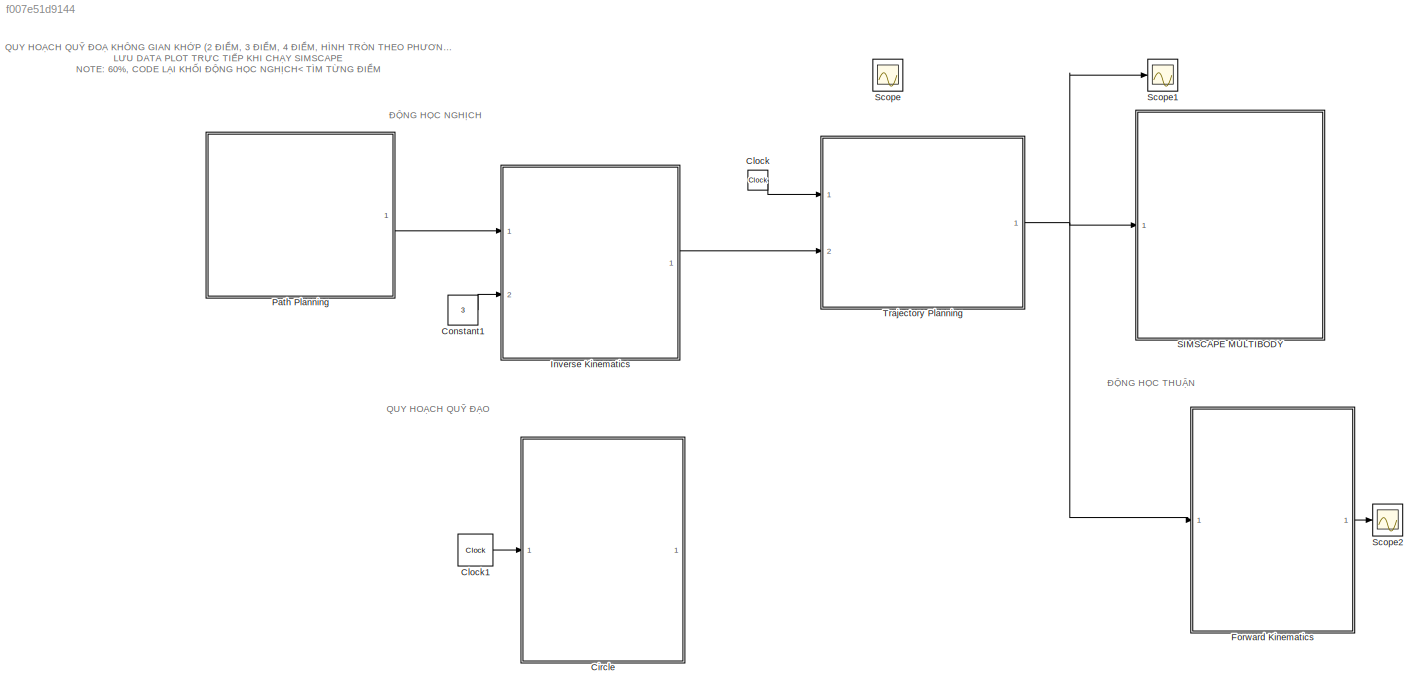
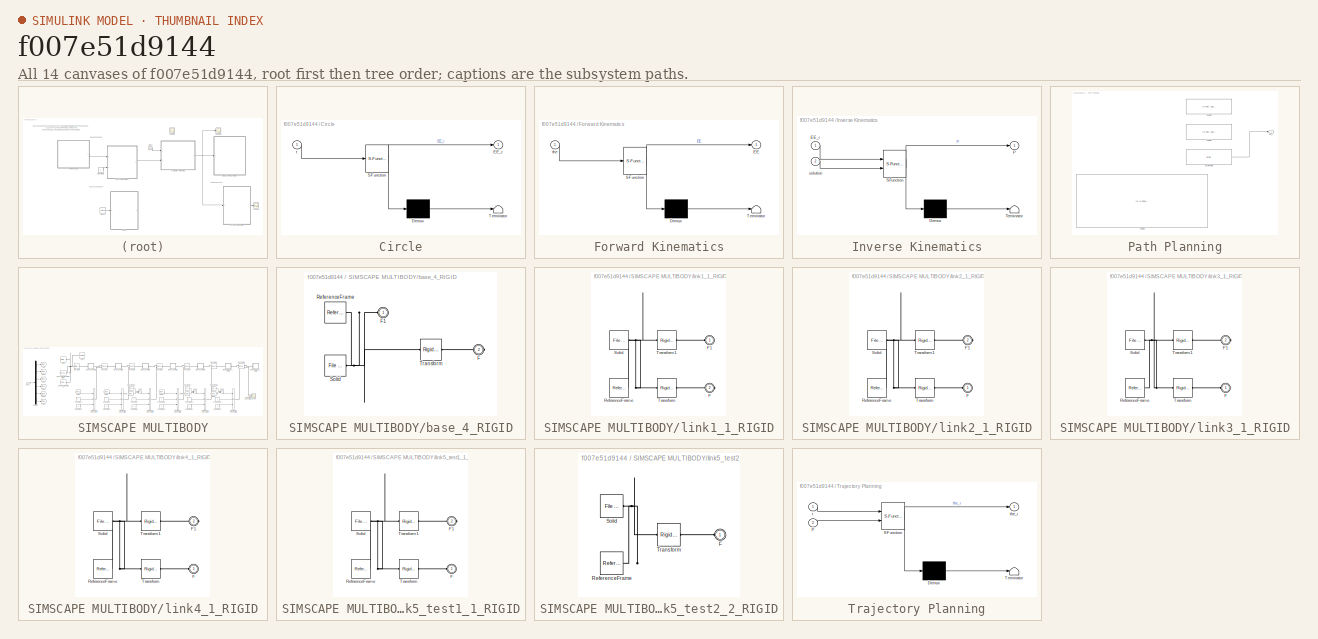
[diagram: thumbnail index - all 14 canvases of the model, root first then tree order]
MODEL slx_f007e51d9144
KIND model
CONFIG AbsTol = auto
CONFIG EnableMultiTasking = off
CONFIG FixedStep = 0.01
CONFIG MaxStep = auto
CONFIG MinStep = auto
CONFIG RelTol = 1e-3
CONFIG SampleTimeConstraint = Unconstrained
CONFIG SolverName = FixedStepAuto
CONFIG StartTime = 0.0
CONFIG StopTime = 10
WORKSPACE source: external: MATLAB File  (data not in archive)
BLOCK [SubSystem] Circle
  Commented = on
  ErrorFcn = Stateflow.Translate.translate
  PermitHierarchicalResolution = ExplicitOnly
  Ports = [1, 1]
  RequestExecContextInheritance = off
  SFBlockType = MATLAB Function
  TreatAsAtomicUnit = on
BLOCK [Demux] Circle/ Demux 
  Outputs = 1
  Ports = [1, 1]
BLOCK [S-Function] Circle/ SFunction 
  EnableBusSupport = on
  FunctionName = sf_sfun
  PortCounts = [1 2]
  Ports = [1, 2]
  SFcnIsStateOwnerBlock = off
  SFunctionDeploymentMode = off
  Tag = Stateflow S-Function 4
BLOCK [Terminator] Circle/ Terminator 
BLOCK [Outport] Circle/EE_r
BLOCK [Inport] Circle/t
BLOCK [Clock] Clock
BLOCK [Clock] Clock1
  Commented = on
  DisplayTime = on
BLOCK [Constant] Constant1
  Value = 3
BLOCK [SubSystem] Forward Kinematics
  ErrorFcn = Stateflow.Translate.translate
  PermitHierarchicalResolution = ExplicitOnly
  Ports = [1, 1]
  RequestExecContextInheritance = off
  SFBlockType = MATLAB Function
  TreatAsAtomicUnit = on
BLOCK [Demux] Forward Kinematics/ Demux 
  Outputs = 1
  Ports = [1, 1]
BLOCK [S-Function] Forward Kinematics/ SFunction 
  EnableBusSupport = on
  FunctionName = sf_sfun
  PortCounts = [1 2]
  Ports = [1, 2]
  SFcnIsStateOwnerBlock = off
  SFunctionDeploymentMode = off
  Tag = Stateflow S-Function 1
BLOCK [Terminator] Forward Kinematics/ Terminator 
BLOCK [Outport] Forward Kinematics/EE
BLOCK [Inport] Forward Kinematics/the
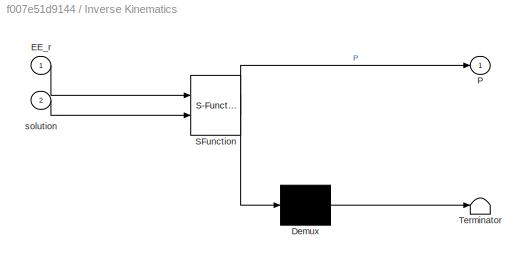
BLOCK [SubSystem] Inverse Kinematics
  ErrorFcn = Stateflow.Translate.translate
  PermitHierarchicalResolution = ExplicitOnly
  Ports = [2, 1]
  RequestExecContextInheritance = off
  SFBlockType = MATLAB Function
  TreatAsAtomicUnit = on
BLOCK [Demux] Inverse Kinematics/ Demux 
  Outputs = 1
  Ports = [1, 1]
BLOCK [S-Function] Inverse Kinematics/ SFunction 
  EnableBusSupport = on
  FunctionName = sf_sfun
  PortCounts = [2 2]
  Ports = [2, 2]
  SFcnIsStateOwnerBlock = off
  SFunctionDeploymentMode = off
  Tag = Stateflow S-Function 6
BLOCK [Terminator] Inverse Kinematics/ Terminator 
BLOCK [Inport] Inverse Kinematics/EE_r
BLOCK [Outport] Inverse Kinematics/P
BLOCK [Inport] Inverse Kinematics/solution
  Port = 2
BLOCK [SubSystem] Path Planning
  Ports = [0, 1]
  RequestExecContextInheritance = off
BLOCK [Constant] Path Planning/2 Points
  Commented = on
  Value = [0 450 -100 650 0 0 0; 10 450 100 650 0 0 0;20 450 -100 650 0 0 0]
BLOCK [Constant] Path Planning/3 Points
  Commented = on
  Value = [0 450 -100 650 0 0 0; 10 450 100 650 0 0 0; 20 450 0 500 0 0 0; 30 450 -100 650 0 0 0]
BLOCK [Constant] Path Planning/4 Points
  Commented = on
  Value = [0,-0.2640,0.0117,0.1379,2.0748,0.3026,1.0469,0,0,0,0,0,0;5,0.2640,0.0117,0.1379,-2.0748,0.3026,-1.0469,0,0,0,0,0,0;10,0.2640,0.0669,0.5745,-2.7173,0.6865,-0.3361,0,0,0,0,0,0;15,-0.2640, 0.0669,0.5745,2.7173,0.6865,0.3361,0,0,0,0,0,0;20,-0.2640,0.0117,0.1379,2.0748,0.3026,1.0469,0,0,0,0,0,0]
BLOCK [Constant] Path Planning/Circle Points
  Value = circle
BLOCK [Outport] Path Planning/EE_r
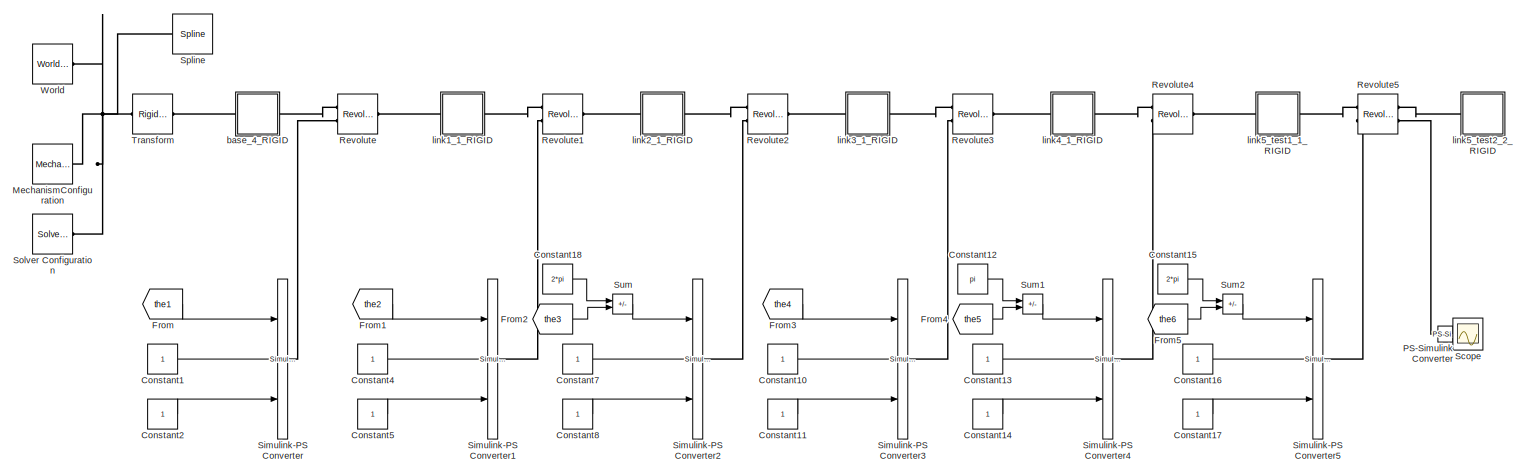
[diagram: SIMSCAPE MULTIBODY - part 1/2, most of the canvas]
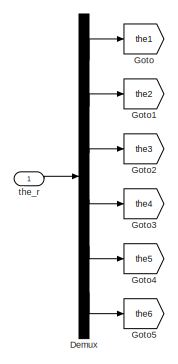
[diagram: SIMSCAPE MULTIBODY - part 2/2, middle left region]
BLOCK [SubSystem] SIMSCAPE MULTIBODY
  Ports = [1]
  RequestExecContextInheritance = off
BLOCK [Constant] SIMSCAPE MULTIBODY/Constant1
BLOCK [Constant] SIMSCAPE MULTIBODY/Constant10
BLOCK [Constant] SIMSCAPE MULTIBODY/Constant11
BLOCK [Constant] SIMSCAPE MULTIBODY/Constant12
  Value = pi
BLOCK [Constant] SIMSCAPE MULTIBODY/Constant13
BLOCK [Constant] SIMSCAPE MULTIBODY/Constant14
BLOCK [Constant] SIMSCAPE MULTIBODY/Constant15
  Value = 2*pi
BLOCK [Constant] SIMSCAPE MULTIBODY/Constant16
BLOCK [Constant] SIMSCAPE MULTIBODY/Constant17
BLOCK [Constant] SIMSCAPE MULTIBODY/Constant18
  Value = 2*pi
BLOCK [Constant] SIMSCAPE MULTIBODY/Constant2
BLOCK [Constant] SIMSCAPE MULTIBODY/Constant4
BLOCK [Constant] SIMSCAPE MULTIBODY/Constant5
BLOCK [Constant] SIMSCAPE MULTIBODY/Constant7
BLOCK [Constant] SIMSCAPE MULTIBODY/Constant8
BLOCK [Demux] SIMSCAPE MULTIBODY/Demux
  Outputs = 6
  Ports = [1, 6]
BLOCK [From] SIMSCAPE MULTIBODY/From
  GotoTag = the1
BLOCK [From] SIMSCAPE MULTIBODY/From1
  GotoTag = the2
BLOCK [From] SIMSCAPE MULTIBODY/From2
  GotoTag = the3
BLOCK [From] SIMSCAPE MULTIBODY/From3
  GotoTag = the4
BLOCK [From] SIMSCAPE MULTIBODY/From4
  GotoTag = the5
BLOCK [From] SIMSCAPE MULTIBODY/From5
  GotoTag = the6
BLOCK [Goto] SIMSCAPE MULTIBODY/Goto
  GotoTag = the1
BLOCK [Goto] SIMSCAPE MULTIBODY/Goto1
  GotoTag = the2
BLOCK [Goto] SIMSCAPE MULTIBODY/Goto2
  GotoTag = the3
BLOCK [Goto] SIMSCAPE MULTIBODY/Goto3
  GotoTag = the4
BLOCK [Goto] SIMSCAPE MULTIBODY/Goto4
  GotoTag = the5
BLOCK [Goto] SIMSCAPE MULTIBODY/Goto5
  GotoTag = the6
BLOCK [Reference] SIMSCAPE MULTIBODY/MechanismConfiguration  REF=sm_lib/Utilities/Mechanism
Configuration
  Ports = [0, 0, 0, 0, 0, 0, 1]
  SourceBlock = sm_lib/Utilities/Mechanism\nConfiguration
  SourceProductBaseCode = MS
  SourceType = Mechanism\nConfiguration
BLOCK [Reference] SIMSCAPE MULTIBODY/PS-Simulink Converter  REF=nesl_utility/PS-Simulink
Converter
  Ports = [0, 1, 0, 0, 0, 1]
  SourceBlock = nesl_utility/PS-Simulink\nConverter
  SourceProductBaseCode = PW,SS
  SourceType = PS-Simulink\nConverter
BLOCK [Reference] SIMSCAPE MULTIBODY/Revolute  REF=sm_lib/Joints/Revolute Joint
  Ports = [0, 0, 0, 0, 0, 2, 1]
  SourceBlock = sm_lib/Joints/Revolute Joint
  SourceProductBaseCode = MS
  SourceType = Revolute Joint
BLOCK [Reference] SIMSCAPE MULTIBODY/Revolute1  REF=sm_lib/Joints/Revolute Joint
  Ports = [0, 0, 0, 0, 0, 2, 1]
  SourceBlock = sm_lib/Joints/Revolute Joint
  SourceProductBaseCode = MS
  SourceType = Revolute Joint
BLOCK [Reference] SIMSCAPE MULTIBODY/Revolute2  REF=sm_lib/Joints/Revolute Joint
  Ports = [0, 0, 0, 0, 0, 2, 1]
  SourceBlock = sm_lib/Joints/Revolute Joint
  SourceProductBaseCode = MS
  SourceType = Revolute Joint
BLOCK [Reference] SIMSCAPE MULTIBODY/Revolute3  REF=sm_lib/Joints/Revolute Joint
  Ports = [0, 0, 0, 0, 0, 2, 1]
  SourceBlock = sm_lib/Joints/Revolute Joint
  SourceProductBaseCode = MS
  SourceType = Revolute Joint
BLOCK [Reference] SIMSCAPE MULTIBODY/Revolute4  REF=sm_lib/Joints/Revolute Joint
  Ports = [0, 0, 0, 0, 0, 2, 1]
  SourceBlock = sm_lib/Joints/Revolute Joint
  SourceProductBaseCode = MS
  SourceType = Revolute Joint
BLOCK [Reference] SIMSCAPE MULTIBODY/Revolute5  REF=sm_lib/Joints/Revolute Joint
  Ports = [0, 0, 0, 0, 0, 2, 2]
  SourceBlock = sm_lib/Joints/Revolute Joint
  SourceProductBaseCode = MS
  SourceType = Revolute Joint
BLOCK [Scope] SIMSCAPE MULTIBODY/Scope
  Floating = off
  NumInputPorts = 1
  Ports = [1]
  ScopeSpecificationString = Simulink.scopes.TimeScopeBlockCfg('CurrentConfiguration', extmgr.ConfigurationSet(extmgr.Configuration('Core','General UI',true),extmgr.Configuration('Core','Source UI',true),extmgr.Configuration('Sources','WiredSimulink',true,'DataLoggingVariableName','ScopeData3'),extmgr.Configuration('Visuals','Time Domain',true,'SerializedDisplays',{struct('MinYLimReal','4.97456','MaxYLimReal','7.59181','YLabe...<+1378ch>
BLOCK [Reference] SIMSCAPE MULTIBODY/Simulink-PS Converter  REF=nesl_utility/Simulink-PS
Converter
  Ports = [3, 0, 0, 0, 0, 0, 1]
  SourceBlock = nesl_utility/Simulink-PS\nConverter
  SourceProductBaseCode = PW,SS
  SourceType = Simulink-PS\nConverter
BLOCK [Reference] SIMSCAPE MULTIBODY/Simulink-PS Converter1  REF=nesl_utility/Simulink-PS
Converter
  Ports = [3, 0, 0, 0, 0, 0, 1]
  SourceBlock = nesl_utility/Simulink-PS\nConverter
  SourceProductBaseCode = PW,SS
  SourceType = Simulink-PS\nConverter
BLOCK [Reference] SIMSCAPE MULTIBODY/Simulink-PS Converter2  REF=nesl_utility/Simulink-PS
Converter
  Ports = [3, 0, 0, 0, 0, 0, 1]
  SourceBlock = nesl_utility/Simulink-PS\nConverter
  SourceProductBaseCode = PW,SS
  SourceType = Simulink-PS\nConverter
BLOCK [Reference] SIMSCAPE MULTIBODY/Simulink-PS Converter3  REF=nesl_utility/Simulink-PS
Converter
  Ports = [3, 0, 0, 0, 0, 0, 1]
  SourceBlock = nesl_utility/Simulink-PS\nConverter
  SourceProductBaseCode = PW,SS
  SourceType = Simulink-PS\nConverter
BLOCK [Reference] SIMSCAPE MULTIBODY/Simulink-PS Converter4  REF=nesl_utility/Simulink-PS
Converter
  Ports = [3, 0, 0, 0, 0, 0, 1]
  SourceBlock = nesl_utility/Simulink-PS\nConverter
  SourceProductBaseCode = PW,SS
  SourceType = Simulink-PS\nConverter
BLOCK [Reference] SIMSCAPE MULTIBODY/Simulink-PS Converter5  REF=nesl_utility/Simulink-PS
Converter
  Ports = [3, 0, 0, 0, 0, 0, 1]
  SourceBlock = nesl_utility/Simulink-PS\nConverter
  SourceProductBaseCode = PW,SS
  SourceType = Simulink-PS\nConverter
BLOCK [Reference] SIMSCAPE MULTIBODY/Solver Configuration  REF=nesl_utility/Solver
Configuration
  Ports = [0, 0, 0, 0, 0, 0, 1]
  SourceBlock = nesl_utility/Solver\nConfiguration
  SourceProductBaseCode = PW,SS
  SourceType = Solver\nConfiguration
BLOCK [Reference] SIMSCAPE MULTIBODY/Spline  REF=sm_lib/Curves and Surfaces/Spline
  Ports = [0, 0, 0, 0, 0, 1, 1]
  SourceBlock = sm_lib/Curves and Surfaces/Spline
  SourceProductBaseCode = MS
  SourceType = Spline
BLOCK [Sum] SIMSCAPE MULTIBODY/Sum
  IconShape = rectangular
  Inputs = +-
  Ports = [2, 1]
BLOCK [Sum] SIMSCAPE MULTIBODY/Sum1
  IconShape = rectangular
  Inputs = +-
  Ports = [2, 1]
BLOCK [Sum] SIMSCAPE MULTIBODY/Sum2
  IconShape = rectangular
  Inputs = +-
  Ports = [2, 1]
BLOCK [Reference] SIMSCAPE MULTIBODY/Transform  REF=sm_lib/Frames and
Transforms/Rigid
Transform
  Ports = [0, 0, 0, 0, 0, 1, 1]
  SourceBlock = sm_lib/Frames and\nTransforms/Rigid\nTransform
  SourceProductBaseCode = MS
  SourceType = Rigid\nTransform
BLOCK [Reference] SIMSCAPE MULTIBODY/World  REF=sm_lib/Frames and
Transforms/World Frame
  Ports = [0, 0, 0, 0, 0, 0, 1]
  SourceBlock = sm_lib/Frames and\nTransforms/World Frame
  SourceProductBaseCode = MS
  SourceType = World Frame
BLOCK [SubSystem] SIMSCAPE MULTIBODY/base_4_RIGID
  Ports = [0, 0, 0, 0, 0, 1, 1]
  RequestExecContextInheritance = off
BLOCK [PMIOPort] SIMSCAPE MULTIBODY/base_4_RIGID/F
  Port = 2
  Side = Right
BLOCK [PMIOPort] SIMSCAPE MULTIBODY/base_4_RIGID/F1
  Side = Left
BLOCK [Reference] SIMSCAPE MULTIBODY/base_4_RIGID/ReferenceFrame  REF=sm_lib/Frames and
Transforms/Reference
Frame
  Ports = [0, 0, 0, 0, 0, 0, 1]
  SourceBlock = sm_lib/Frames and\nTransforms/Reference\nFrame
  SourceProductBaseCode = MS
  SourceType = Reference\nFrame
BLOCK [Reference] SIMSCAPE MULTIBODY/base_4_RIGID/Solid  REF=sm_lib/Body Elements/File Solid
  Ports = [0, 0, 0, 0, 0, 0, 1]
  SourceBlock = sm_lib/Body Elements/File Solid
  SourceProductBaseCode = MS
  SourceType = File Solid
BLOCK [Reference] SIMSCAPE MULTIBODY/base_4_RIGID/Transform  REF=sm_lib/Frames and
Transforms/Rigid
Transform
  Ports = [0, 0, 0, 0, 0, 1, 1]
  SourceBlock = sm_lib/Frames and\nTransforms/Rigid\nTransform
  SourceProductBaseCode = MS
  SourceType = Rigid\nTransform
BLOCK [SubSystem] SIMSCAPE MULTIBODY/link1_1_RIGID
  Ports = [0, 0, 0, 0, 0, 1, 1]
  RequestExecContextInheritance = off
BLOCK [PMIOPort] SIMSCAPE MULTIBODY/link1_1_RIGID/F
  Port = 2
  Side = Right
BLOCK [PMIOPort] SIMSCAPE MULTIBODY/link1_1_RIGID/F1
  Side = Left
BLOCK [Reference] SIMSCAPE MULTIBODY/link1_1_RIGID/ReferenceFrame  REF=sm_lib/Frames and
Transforms/Reference
Frame
  Ports = [0, 0, 0, 0, 0, 0, 1]
  SourceBlock = sm_lib/Frames and\nTransforms/Reference\nFrame
  SourceProductBaseCode = MS
  SourceType = Reference\nFrame
BLOCK [Reference] SIMSCAPE MULTIBODY/link1_1_RIGID/Solid  REF=sm_lib/Body Elements/File Solid
  Ports = [0, 0, 0, 0, 0, 0, 1]
  SourceBlock = sm_lib/Body Elements/File Solid
  SourceProductBaseCode = MS
  SourceType = File Solid
BLOCK [Reference] SIMSCAPE MULTIBODY/link1_1_RIGID/Transform  REF=sm_lib/Frames and
Transforms/Rigid
Transform
  Ports = [0, 0, 0, 0, 0, 1, 1]
  SourceBlock = sm_lib/Frames and\nTransforms/Rigid\nTransform
  SourceProductBaseCode = MS
  SourceType = Rigid\nTransform
BLOCK [Reference] SIMSCAPE MULTIBODY/link1_1_RIGID/Transform1  REF=sm_lib/Frames and
Transforms/Rigid
Transform
  Ports = [0, 0, 0, 0, 0, 1, 1]
  SourceBlock = sm_lib/Frames and\nTransforms/Rigid\nTransform
  SourceProductBaseCode = MS
  SourceType = Rigid\nTransform
BLOCK [SubSystem] SIMSCAPE MULTIBODY/link2_1_RIGID
  Ports = [0, 0, 0, 0, 0, 1, 1]
  RequestExecContextInheritance = off
BLOCK [PMIOPort] SIMSCAPE MULTIBODY/link2_1_RIGID/F
  Side = Left
BLOCK [PMIOPort] SIMSCAPE MULTIBODY/link2_1_RIGID/F1
  Port = 2
  Side = Right
BLOCK [Reference] SIMSCAPE MULTIBODY/link2_1_RIGID/ReferenceFrame  REF=sm_lib/Frames and
Transforms/Reference
Frame
  Ports = [0, 0, 0, 0, 0, 0, 1]
  SourceBlock = sm_lib/Frames and\nTransforms/Reference\nFrame
  SourceProductBaseCode = MS
  SourceType = Reference\nFrame
BLOCK [Reference] SIMSCAPE MULTIBODY/link2_1_RIGID/Solid  REF=sm_lib/Body Elements/File Solid
  Ports = [0, 0, 0, 0, 0, 0, 1]
  SourceBlock = sm_lib/Body Elements/File Solid
  SourceProductBaseCode = MS
  SourceType = File Solid
BLOCK [Reference] SIMSCAPE MULTIBODY/link2_1_RIGID/Transform  REF=sm_lib/Frames and
Transforms/Rigid
Transform
  Ports = [0, 0, 0, 0, 0, 1, 1]
  SourceBlock = sm_lib/Frames and\nTransforms/Rigid\nTransform
  SourceProductBaseCode = MS
  SourceType = Rigid\nTransform
BLOCK [Reference] SIMSCAPE MULTIBODY/link2_1_RIGID/Transform1  REF=sm_lib/Frames and
Transforms/Rigid
Transform
  Ports = [0, 0, 0, 0, 0, 1, 1]
  SourceBlock = sm_lib/Frames and\nTransforms/Rigid\nTransform
  SourceProductBaseCode = MS
  SourceType = Rigid\nTransform
BLOCK [SubSystem] SIMSCAPE MULTIBODY/link3_1_RIGID
  Ports = [0, 0, 0, 0, 0, 1, 1]
  RequestExecContextInheritance = off
BLOCK [PMIOPort] SIMSCAPE MULTIBODY/link3_1_RIGID/F
  Side = Left
BLOCK [PMIOPort] SIMSCAPE MULTIBODY/link3_1_RIGID/F1
  Port = 2
  Side = Right
BLOCK [Reference] SIMSCAPE MULTIBODY/link3_1_RIGID/ReferenceFrame  REF=sm_lib/Frames and
Transforms/Reference
Frame
  Ports = [0, 0, 0, 0, 0, 0, 1]
  SourceBlock = sm_lib/Frames and\nTransforms/Reference\nFrame
  SourceProductBaseCode = MS
  SourceType = Reference\nFrame
BLOCK [Reference] SIMSCAPE MULTIBODY/link3_1_RIGID/Solid  REF=sm_lib/Body Elements/File Solid
  Ports = [0, 0, 0, 0, 0, 0, 1]
  SourceBlock = sm_lib/Body Elements/File Solid
  SourceProductBaseCode = MS
  SourceType = File Solid
BLOCK [Reference] SIMSCAPE MULTIBODY/link3_1_RIGID/Transform  REF=sm_lib/Frames and
Transforms/Rigid
Transform
  Ports = [0, 0, 0, 0, 0, 1, 1]
  SourceBlock = sm_lib/Frames and\nTransforms/Rigid\nTransform
  SourceProductBaseCode = MS
  SourceType = Rigid\nTransform
BLOCK [Reference] SIMSCAPE MULTIBODY/link3_1_RIGID/Transform1  REF=sm_lib/Frames and
Transforms/Rigid
Transform
  Ports = [0, 0, 0, 0, 0, 1, 1]
  SourceBlock = sm_lib/Frames and\nTransforms/Rigid\nTransform
  SourceProductBaseCode = MS
  SourceType = Rigid\nTransform
BLOCK [SubSystem] SIMSCAPE MULTIBODY/link4_1_RIGID
  Ports = [0, 0, 0, 0, 0, 1, 1]
  RequestExecContextInheritance = off
BLOCK [PMIOPort] SIMSCAPE MULTIBODY/link4_1_RIGID/F
  Side = Left
BLOCK [PMIOPort] SIMSCAPE MULTIBODY/link4_1_RIGID/F1
  Port = 2
  Side = Right
BLOCK [Reference] SIMSCAPE MULTIBODY/link4_1_RIGID/ReferenceFrame  REF=sm_lib/Frames and
Transforms/Reference
Frame
  Ports = [0, 0, 0, 0, 0, 0, 1]
  SourceBlock = sm_lib/Frames and\nTransforms/Reference\nFrame
  SourceProductBaseCode = MS
  SourceType = Reference\nFrame
BLOCK [Reference] SIMSCAPE MULTIBODY/link4_1_RIGID/Solid  REF=sm_lib/Body Elements/File Solid
  Ports = [0, 0, 0, 0, 0, 0, 1]
  SourceBlock = sm_lib/Body Elements/File Solid
  SourceProductBaseCode = MS
  SourceType = File Solid
BLOCK [Reference] SIMSCAPE MULTIBODY/link4_1_RIGID/Transform  REF=sm_lib/Frames and
Transforms/Rigid
Transform
  Ports = [0, 0, 0, 0, 0, 1, 1]
  SourceBlock = sm_lib/Frames and\nTransforms/Rigid\nTransform
  SourceProductBaseCode = MS
  SourceType = Rigid\nTransform
BLOCK [Reference] SIMSCAPE MULTIBODY/link4_1_RIGID/Transform1  REF=sm_lib/Frames and
Transforms/Rigid
Transform
  Ports = [0, 0, 0, 0, 0, 1, 1]
  SourceBlock = sm_lib/Frames and\nTransforms/Rigid\nTransform
  SourceProductBaseCode = MS
  SourceType = Rigid\nTransform
BLOCK [SubSystem] SIMSCAPE MULTIBODY/link5_test1_1_RIGID
  Ports = [0, 0, 0, 0, 0, 1, 1]
  RequestExecContextInheritance = off
BLOCK [PMIOPort] SIMSCAPE MULTIBODY/link5_test1_1_RIGID/F
  Side = Left
BLOCK [PMIOPort] SIMSCAPE MULTIBODY/link5_test1_1_RIGID/F1
  Port = 2
  Side = Right
BLOCK [Reference] SIMSCAPE MULTIBODY/link5_test1_1_RIGID/ReferenceFrame  REF=sm_lib/Frames and
Transforms/Reference
Frame
  Ports = [0, 0, 0, 0, 0, 0, 1]
  SourceBlock = sm_lib/Frames and\nTransforms/Reference\nFrame
  SourceProductBaseCode = MS
  SourceType = Reference\nFrame
BLOCK [Reference] SIMSCAPE MULTIBODY/link5_test1_1_RIGID/Solid  REF=sm_lib/Body Elements/File Solid
  Ports = [0, 0, 0, 0, 0, 0, 1]
  SourceBlock = sm_lib/Body Elements/File Solid
  SourceProductBaseCode = MS
  SourceType = File Solid
BLOCK [Reference] SIMSCAPE MULTIBODY/link5_test1_1_RIGID/Transform  REF=sm_lib/Frames and
Transforms/Rigid
Transform
  Ports = [0, 0, 0, 0, 0, 1, 1]
  SourceBlock = sm_lib/Frames and\nTransforms/Rigid\nTransform
  SourceProductBaseCode = MS
  SourceType = Rigid\nTransform
BLOCK [Reference] SIMSCAPE MULTIBODY/link5_test1_1_RIGID/Transform1  REF=sm_lib/Frames and
Transforms/Rigid
Transform
  Ports = [0, 0, 0, 0, 0, 1, 1]
  SourceBlock = sm_lib/Frames and\nTransforms/Rigid\nTransform
  SourceProductBaseCode = MS
  SourceType = Rigid\nTransform
BLOCK [SubSystem] SIMSCAPE MULTIBODY/link5_test2_2_RIGID
  Ports = [0, 0, 0, 0, 0, 1]
  RequestExecContextInheritance = off
BLOCK [PMIOPort] SIMSCAPE MULTIBODY/link5_test2_2_RIGID/F
  Side = Left
BLOCK [Reference] SIMSCAPE MULTIBODY/link5_test2_2_RIGID/ReferenceFrame  REF=sm_lib/Frames and
Transforms/Reference
Frame
  Ports = [0, 0, 0, 0, 0, 0, 1]
  SourceBlock = sm_lib/Frames and\nTransforms/Reference\nFrame
  SourceProductBaseCode = MS
  SourceType = Reference\nFrame
BLOCK [Reference] SIMSCAPE MULTIBODY/link5_test2_2_RIGID/Solid  REF=sm_lib/Body Elements/File Solid
  Ports = [0, 0, 0, 0, 0, 0, 1]
  SourceBlock = sm_lib/Body Elements/File Solid
  SourceProductBaseCode = MS
  SourceType = File Solid
BLOCK [Reference] SIMSCAPE MULTIBODY/link5_test2_2_RIGID/Transform  REF=sm_lib/Frames and
Transforms/Rigid
Transform
  Ports = [0, 0, 0, 0, 0, 1, 1]
  SourceBlock = sm_lib/Frames and\nTransforms/Rigid\nTransform
  SourceProductBaseCode = MS
  SourceType = Rigid\nTransform
BLOCK [Inport] SIMSCAPE MULTIBODY/the_r
BLOCK [Scope] Scope
  Floating = off
  NumInputPorts = 1
  Ports = [1]
  ScopeSpecificationString = Simulink.scopes.TimeScopeBlockCfg('CurrentConfiguration', extmgr.ConfigurationSet(extmgr.Configuration('Core','General UI',true),extmgr.Configuration('Core','Source UI',true),extmgr.Configuration('Sources','WiredSimulink',true,'DataLogging',true,'DataLoggingSaveFormat','StructureWithTime'),extmgr.Configuration('Visuals','Time Domain',true,'SerializedDisplays',{struct('MinYLimReal','-1.00000','MaxY...<+1452ch>
BLOCK [Scope] Scope1
  Floating = off
  NumInputPorts = 1
  Ports = [1]
  ScopeSpecificationString = Simulink.scopes.TimeScopeBlockCfg('CurrentConfiguration', extmgr.ConfigurationSet(extmgr.Configuration('Core','General UI',true),extmgr.Configuration('Core','Source UI',true),extmgr.Configuration('Sources','WiredSimulink',true,'DataLoggingVariableName','ScopeData1'),extmgr.Configuration('Visuals','Time Domain',true,'SerializedDisplays',{struct('MinYLimReal','-3.89322','MaxYLimReal','3.92324','YLab...<+1587ch>
BLOCK [Scope] Scope2
  Floating = off
  NumInputPorts = 1
  Ports = [1]
  ScopeSpecificationString = Simulink.scopes.TimeScopeBlockCfg('CurrentConfiguration', extmgr.ConfigurationSet(extmgr.Configuration('Core','General UI',true),extmgr.Configuration('Core','Source UI',true),extmgr.Configuration('Sources','WiredSimulink',true,'DataLogging',true,'DataLoggingSaveFormat','StructureWithTime','DataLoggingVariableName','d'),extmgr.Configuration('Visuals','Time Domain',true,'SerializedDisplays',{struct(...<+1594ch>
BLOCK [SubSystem] Trajectory Planning
  ErrorFcn = Stateflow.Translate.translate
  PermitHierarchicalResolution = ExplicitOnly
  Ports = [2, 1]
  RequestExecContextInheritance = off
  SFBlockType = MATLAB Function
  TreatAsAtomicUnit = on
BLOCK [Demux] Trajectory Planning/ Demux 
  Outputs = 1
  Ports = [1, 1]
BLOCK [S-Function] Trajectory Planning/ SFunction 
  EnableBusSupport = on
  FunctionName = sf_sfun
  PortCounts = [2 2]
  Ports = [2, 2]
  SFcnIsStateOwnerBlock = off
  SFunctionDeploymentMode = off
  Tag = Stateflow S-Function 5
BLOCK [Terminator] Trajectory Planning/ Terminator 
BLOCK [Inport] Trajectory Planning/P
  Port = 2
BLOCK [Inport] Trajectory Planning/t
BLOCK [Outport] Trajectory Planning/the_r
ANNOTATION (root): QUY HOẠCH QUỸ ĐOẠ KHÔNG GIAN KHỚP (2 ĐIỂM, 3 ĐIỂM, 4 ĐIỂM, HÌNH TRÒN THEO PHƯƠNG TRÌNH, HÌNH TRÒN THEO NHIỀU ĐIỂM) LƯU DATA PLOT TRỰC TIẾP KHI CHẠY SIMSCAPE NOTE: 60%, CODE LẠI KHỐI ĐỘNG HỌC NGHỊCH< TÌM TỪNG ĐIỂM
ANNOTATION (root): QUY HOẠCH QUỸ ĐẠO
ANNOTATION (root): ĐỘNG HỌC NGHỊCH
ANNOTATION (root): ĐỘNG HỌC THUẬN
LINE Clock1:1 -> Circle:1
LINE Clock:1 -> Trajectory Planning:1
LINE Constant1:1 -> Inverse Kinematics:2
LINE Forward Kinematics:1 -> Scope2:1
LINE Inverse Kinematics:1 -> Trajectory Planning:2
LINE Path Planning/Circle Points:1 -> Path Planning/EE_r:1
LINE Path Planning:1 -> Inverse Kinematics:1
LINE SIMSCAPE MULTIBODY/Constant10:1 -> SIMSCAPE MULTIBODY/Simulink-PS Converter3:2
LINE SIMSCAPE MULTIBODY/Constant11:1 -> SIMSCAPE MULTIBODY/Simulink-PS Converter3:3
LINE SIMSCAPE MULTIBODY/Constant12:1 -> SIMSCAPE MULTIBODY/Sum1:1
LINE SIMSCAPE MULTIBODY/Constant13:1 -> SIMSCAPE MULTIBODY/Simulink-PS Converter4:2
LINE SIMSCAPE MULTIBODY/Constant14:1 -> SIMSCAPE MULTIBODY/Simulink-PS Converter4:3
LINE SIMSCAPE MULTIBODY/Constant15:1 -> SIMSCAPE MULTIBODY/Sum2:1
LINE SIMSCAPE MULTIBODY/Constant16:1 -> SIMSCAPE MULTIBODY/Simulink-PS Converter5:2
LINE SIMSCAPE MULTIBODY/Constant17:1 -> SIMSCAPE MULTIBODY/Simulink-PS Converter5:3
LINE SIMSCAPE MULTIBODY/Constant18:1 -> SIMSCAPE MULTIBODY/Sum:1
LINE SIMSCAPE MULTIBODY/Constant1:1 -> SIMSCAPE MULTIBODY/Simulink-PS Converter:2
LINE SIMSCAPE MULTIBODY/Constant2:1 -> SIMSCAPE MULTIBODY/Simulink-PS Converter:3
LINE SIMSCAPE MULTIBODY/Constant4:1 -> SIMSCAPE MULTIBODY/Simulink-PS Converter1:2
LINE SIMSCAPE MULTIBODY/Constant5:1 -> SIMSCAPE MULTIBODY/Simulink-PS Converter1:3
LINE SIMSCAPE MULTIBODY/Constant7:1 -> SIMSCAPE MULTIBODY/Simulink-PS Converter2:2
LINE SIMSCAPE MULTIBODY/Constant8:1 -> SIMSCAPE MULTIBODY/Simulink-PS Converter2:3
LINE SIMSCAPE MULTIBODY/Demux:1 -> SIMSCAPE MULTIBODY/Goto:1
LINE SIMSCAPE MULTIBODY/Demux:2 -> SIMSCAPE MULTIBODY/Goto1:1
LINE SIMSCAPE MULTIBODY/Demux:3 -> SIMSCAPE MULTIBODY/Goto2:1
LINE SIMSCAPE MULTIBODY/Demux:4 -> SIMSCAPE MULTIBODY/Goto3:1
LINE SIMSCAPE MULTIBODY/Demux:5 -> SIMSCAPE MULTIBODY/Goto4:1
LINE SIMSCAPE MULTIBODY/Demux:6 -> SIMSCAPE MULTIBODY/Goto5:1
LINE SIMSCAPE MULTIBODY/From1:1 -> SIMSCAPE MULTIBODY/Simulink-PS Converter1:1
LINE SIMSCAPE MULTIBODY/From2:1 -> SIMSCAPE MULTIBODY/Sum:2
LINE SIMSCAPE MULTIBODY/From3:1 -> SIMSCAPE MULTIBODY/Simulink-PS Converter3:1
LINE SIMSCAPE MULTIBODY/From4:1 -> SIMSCAPE MULTIBODY/Sum1:2
LINE SIMSCAPE MULTIBODY/From5:1 -> SIMSCAPE MULTIBODY/Sum2:2
LINE SIMSCAPE MULTIBODY/From:1 -> SIMSCAPE MULTIBODY/Simulink-PS Converter:1
LINE SIMSCAPE MULTIBODY/PS-Simulink Converter:1 -> SIMSCAPE MULTIBODY/Scope:1
LINE SIMSCAPE MULTIBODY/Sum1:1 -> SIMSCAPE MULTIBODY/Simulink-PS Converter4:1
LINE SIMSCAPE MULTIBODY/Sum2:1 -> SIMSCAPE MULTIBODY/Simulink-PS Converter5:1
LINE SIMSCAPE MULTIBODY/Sum:1 -> SIMSCAPE MULTIBODY/Simulink-PS Converter2:1
LINE SIMSCAPE MULTIBODY/the_r:1 -> SIMSCAPE MULTIBODY/Demux:1
NET Trajectory Planning:1 -> Forward Kinematics:1, SIMSCAPE MULTIBODY:1, Scope1:1
PNET net1: SIMSCAPE MULTIBODY/MechanismConfiguration:RConn1 -- SIMSCAPE MULTIBODY/Solver Configuration:RConn1 -- SIMSCAPE MULTIBODY/Spline:LConn1 -- SIMSCAPE MULTIBODY/Transform:LConn1 -- SIMSCAPE MULTIBODY/World:RConn1
PLINE SIMSCAPE MULTIBODY/PS-Simulink Converter:LConn1 -- SIMSCAPE MULTIBODY/Revolute5:RConn2
PLINE SIMSCAPE MULTIBODY/Revolute1:LConn1 -- SIMSCAPE MULTIBODY/link1_1_RIGID:RConn1
PLINE SIMSCAPE MULTIBODY/Revolute1:LConn2 -- SIMSCAPE MULTIBODY/Simulink-PS Converter1:RConn1
PLINE SIMSCAPE MULTIBODY/Revolute1:RConn1 -- SIMSCAPE MULTIBODY/link2_1_RIGID:LConn1
PLINE SIMSCAPE MULTIBODY/Revolute2:LConn1 -- SIMSCAPE MULTIBODY/link2_1_RIGID:RConn1
PLINE SIMSCAPE MULTIBODY/Revolute2:LConn2 -- SIMSCAPE MULTIBODY/Simulink-PS Converter2:RConn1
PLINE SIMSCAPE MULTIBODY/Revolute2:RConn1 -- SIMSCAPE MULTIBODY/link3_1_RIGID:LConn1
PLINE SIMSCAPE MULTIBODY/Revolute3:LConn1 -- SIMSCAPE MULTIBODY/link3_1_RIGID:RConn1
PLINE SIMSCAPE MULTIBODY/Revolute3:LConn2 -- SIMSCAPE MULTIBODY/Simulink-PS Converter3:RConn1
PLINE SIMSCAPE MULTIBODY/Revolute3:RConn1 -- SIMSCAPE MULTIBODY/link4_1_RIGID:LConn1
PLINE SIMSCAPE MULTIBODY/Revolute4:LConn1 -- SIMSCAPE MULTIBODY/link4_1_RIGID:RConn1
PLINE SIMSCAPE MULTIBODY/Revolute4:LConn2 -- SIMSCAPE MULTIBODY/Simulink-PS Converter4:RConn1
PLINE SIMSCAPE MULTIBODY/Revolute4:RConn1 -- SIMSCAPE MULTIBODY/link5_test1_1_RIGID:LConn1
PLINE SIMSCAPE MULTIBODY/Revolute5:LConn1 -- SIMSCAPE MULTIBODY/link5_test1_1_RIGID:RConn1
PLINE SIMSCAPE MULTIBODY/Revolute5:LConn2 -- SIMSCAPE MULTIBODY/Simulink-PS Converter5:RConn1
PLINE SIMSCAPE MULTIBODY/Revolute5:RConn1 -- SIMSCAPE MULTIBODY/link5_test2_2_RIGID:LConn1
PLINE SIMSCAPE MULTIBODY/Revolute:LConn1 -- SIMSCAPE MULTIBODY/base_4_RIGID:RConn1
PLINE SIMSCAPE MULTIBODY/Revolute:LConn2 -- SIMSCAPE MULTIBODY/Simulink-PS Converter:RConn1
PLINE SIMSCAPE MULTIBODY/Revolute:RConn1 -- SIMSCAPE MULTIBODY/link1_1_RIGID:LConn1
PLINE SIMSCAPE MULTIBODY/Transform:RConn1 -- SIMSCAPE MULTIBODY/base_4_RIGID:LConn1
PNET net2: SIMSCAPE MULTIBODY/base_4_RIGID/F1:RConn1 -- SIMSCAPE MULTIBODY/base_4_RIGID/ReferenceFrame:RConn1 -- SIMSCAPE MULTIBODY/base_4_RIGID/Solid:RConn1 -- SIMSCAPE MULTIBODY/base_4_RIGID/Transform:LConn1
PLINE SIMSCAPE MULTIBODY/base_4_RIGID/F:RConn1 -- SIMSCAPE MULTIBODY/base_4_RIGID/Transform:RConn1
PLINE SIMSCAPE MULTIBODY/link1_1_RIGID/F1:RConn1 -- SIMSCAPE MULTIBODY/link1_1_RIGID/Transform1:RConn1
PLINE SIMSCAPE MULTIBODY/link1_1_RIGID/F:RConn1 -- SIMSCAPE MULTIBODY/link1_1_RIGID/Transform:RConn1
PNET net3: SIMSCAPE MULTIBODY/link1_1_RIGID/ReferenceFrame:RConn1 -- SIMSCAPE MULTIBODY/link1_1_RIGID/Solid:RConn1 -- SIMSCAPE MULTIBODY/link1_1_RIGID/Transform1:LConn1 -- SIMSCAPE MULTIBODY/link1_1_RIGID/Transform:LConn1
PLINE SIMSCAPE MULTIBODY/link2_1_RIGID/F1:RConn1 -- SIMSCAPE MULTIBODY/link2_1_RIGID/Transform1:RConn1
PLINE SIMSCAPE MULTIBODY/link2_1_RIGID/F:RConn1 -- SIMSCAPE MULTIBODY/link2_1_RIGID/Transform:RConn1
PNET net4: SIMSCAPE MULTIBODY/link2_1_RIGID/ReferenceFrame:RConn1 -- SIMSCAPE MULTIBODY/link2_1_RIGID/Solid:RConn1 -- SIMSCAPE MULTIBODY/link2_1_RIGID/Transform1:LConn1 -- SIMSCAPE MULTIBODY/link2_1_RIGID/Transform:LConn1
PLINE SIMSCAPE MULTIBODY/link3_1_RIGID/F1:RConn1 -- SIMSCAPE MULTIBODY/link3_1_RIGID/Transform1:RConn1
PLINE SIMSCAPE MULTIBODY/link3_1_RIGID/F:RConn1 -- SIMSCAPE MULTIBODY/link3_1_RIGID/Transform:RConn1
PNET net5: SIMSCAPE MULTIBODY/link3_1_RIGID/ReferenceFrame:RConn1 -- SIMSCAPE MULTIBODY/link3_1_RIGID/Solid:RConn1 -- SIMSCAPE MULTIBODY/link3_1_RIGID/Transform1:LConn1 -- SIMSCAPE MULTIBODY/link3_1_RIGID/Transform:LConn1
PLINE SIMSCAPE MULTIBODY/link4_1_RIGID/F1:RConn1 -- SIMSCAPE MULTIBODY/link4_1_RIGID/Transform1:RConn1
PLINE SIMSCAPE MULTIBODY/link4_1_RIGID/F:RConn1 -- SIMSCAPE MULTIBODY/link4_1_RIGID/Transform:RConn1
PNET net6: SIMSCAPE MULTIBODY/link4_1_RIGID/ReferenceFrame:RConn1 -- SIMSCAPE MULTIBODY/link4_1_RIGID/Solid:RConn1 -- SIMSCAPE MULTIBODY/link4_1_RIGID/Transform1:LConn1 -- SIMSCAPE MULTIBODY/link4_1_RIGID/Transform:LConn1
PLINE SIMSCAPE MULTIBODY/link5_test1_1_RIGID/F1:RConn1 -- SIMSCAPE MULTIBODY/link5_test1_1_RIGID/Transform1:RConn1
PLINE SIMSCAPE MULTIBODY/link5_test1_1_RIGID/F:RConn1 -- SIMSCAPE MULTIBODY/link5_test1_1_RIGID/Transform:RConn1
PNET net7: SIMSCAPE MULTIBODY/link5_test1_1_RIGID/ReferenceFrame:RConn1 -- SIMSCAPE MULTIBODY/link5_test1_1_RIGID/Solid:RConn1 -- SIMSCAPE MULTIBODY/link5_test1_1_RIGID/Transform1:LConn1 -- SIMSCAPE MULTIBODY/link5_test1_1_RIGID/Transform:LConn1
PLINE SIMSCAPE MULTIBODY/link5_test2_2_RIGID/F:RConn1 -- SIMSCAPE MULTIBODY/link5_test2_2_RIGID/Transform:RConn1
PNET net8: SIMSCAPE MULTIBODY/link5_test2_2_RIGID/ReferenceFrame:RConn1 -- SIMSCAPE MULTIBODY/link5_test2_2_RIGID/Solid:RConn1 -- SIMSCAPE MULTIBODY/link5_test2_2_RIGID/Transform:LConn1
note: NET lines group one-source signal fan-out (src -> all destinations, sorted); 1:1 wires keep LINE; PNET lines group multi-terminal physical nets as a canonical sorted terminal list (undirected conserving connections); 2-terminal nets keep the pairwise PLINE form
CHART Forward Kinematics states=1 transitions=1
  STATE_LABEL 'eML_blk_kernel()'
  STATE_LABEL 'SCRIPT:\nfunction EE  = FK_6DOF(the)\nthe1 = the(1);\nthe2 = the(2);\nthe3 = the(3);\nthe4 = the(4);\nthe5 = the(5);\nthe6 = the(6);\na1=75; a2=270; a3=90; d1=335; d4=295; d7=80;\n\nT_0_EE = ...\n[ cos(the6)*(cos(the5)*sin(the1)*sin(the4) + cos(the2 + the3)*cos(the1)*sin(the5) + cos(the1)*cos(the2)*cos(the4)*cos(the5)*sin(the3) + cos(the1)*cos(the3)*cos(the4)*cos(the5)*sin(the2)) - sin(the6)*(cos(the1)*cos(t...<+3608ch>'
CHART Circle states=1 transitions=1
  STATE_LABEL 'eML_blk_kernel()'
  STATE_LABEL "SCRIPT:\nfunction EE_r = TrajectoryPlanning(t)\n% H=ScopeData.signals.values(:,1:3);\nf=0.1; %hz\nPx_r = 450;\nPy_r = 0+150*cos(2*pi*f*t+pi/2);\nPz_r = 500+150*sin(2*pi*f*t+pi/2);\nroll_r=pi/2;\npitch_r=pi/2;\nyaw_r=pi/2;\nEE_r = [Px_r,Py_r,Pz_r,roll_r,pitch_r,yaw_r]';"
CHART Trajectory Planning states=1 transitions=1
  STATE_LABEL 'eML_blk_kernel()'
  STATE_LABEL 'SCRIPT:\nfunction the_r = fcn(t,P)\n% H=ScopeData.signals.values(:,1:3); Lưu data để sử dụng spline\n%% Quy hoạch quỹ đạo\nk = size(P,1)-1;                    % Số giai đoạn chạy, i điểm thì i-1 giai đoạn\nai = zeros(k,24);                    % Ma trận K*8 lưu các giá trị a0 - a4 của X, Y\nfor i=1:k\n    ai(i,:) = TP_JS(P(i,:),P(i+1,:));  % Tính giá trị a0 - a4 đối với từng điểm P(x,y)\nend\n%% Xuất quỹ đạ...<+871ch>'
CHART Inverse Kinematics states=1 transitions=1
  STATE_LABEL 'eML_blk_kernel()'
  STATE_LABEL 'SCRIPT:\nfunction P  = fcn(EE_r,solution)\na1=75; a2=270; a3=90; d1=335; d4=295; d7=80;\nl = size(EE_r,1);   % Số điểm cần tính động học nghịch khi quy hoạch đường đi\nemt1 = zeros(l,13); % Mảng rỗng để chứa ngõ t, the(t), v(t)\nt=10;               % Thời gian quy hoạch quỹ đạo\nfor n=1:l           % Vòng for tính động học nghịch từng điểm\n    emt = zeros(8,6);\n    m = 0;\n    px = EE_r(n,2);\n    py = EE...<+2467ch>'
CHART  states=0 transitions=0
CHART  states=0 transitions=0
CHART  states=0 transitions=0
CHART  states=0 transitions=0
